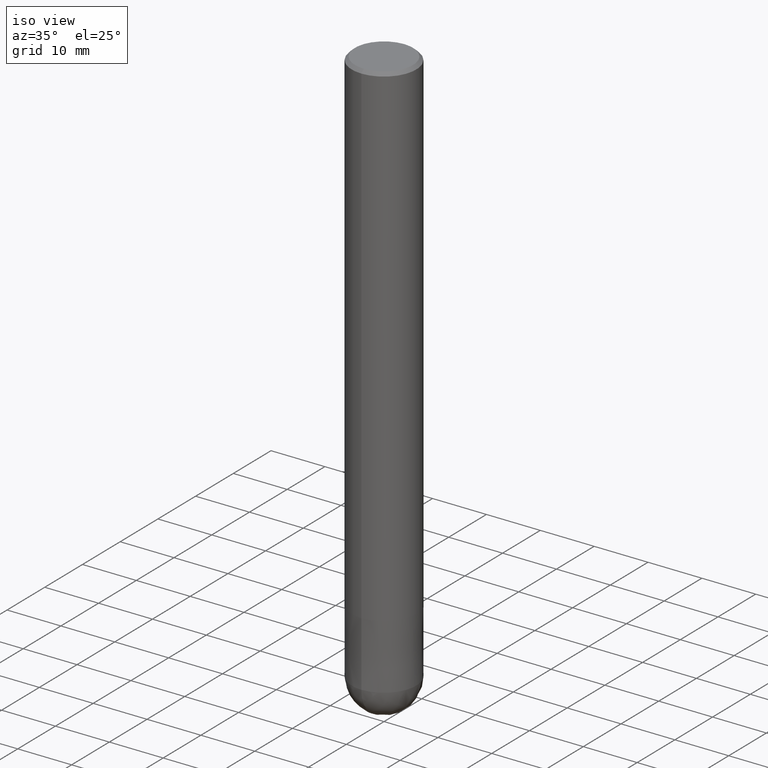
[diagram: clean part render]
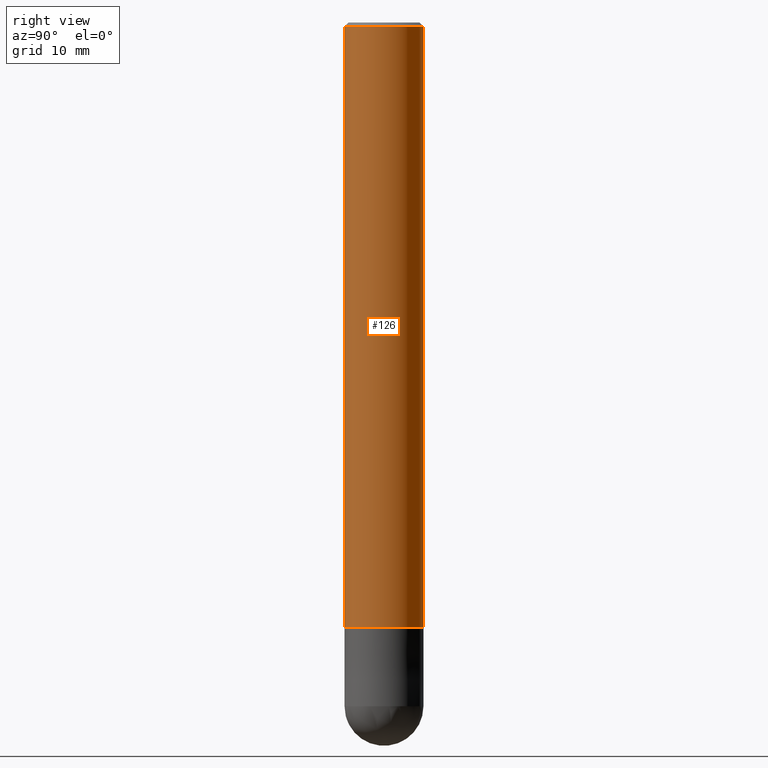
[diagram: tour spotlight — one face highlighted and labeled with its STEP entity id]
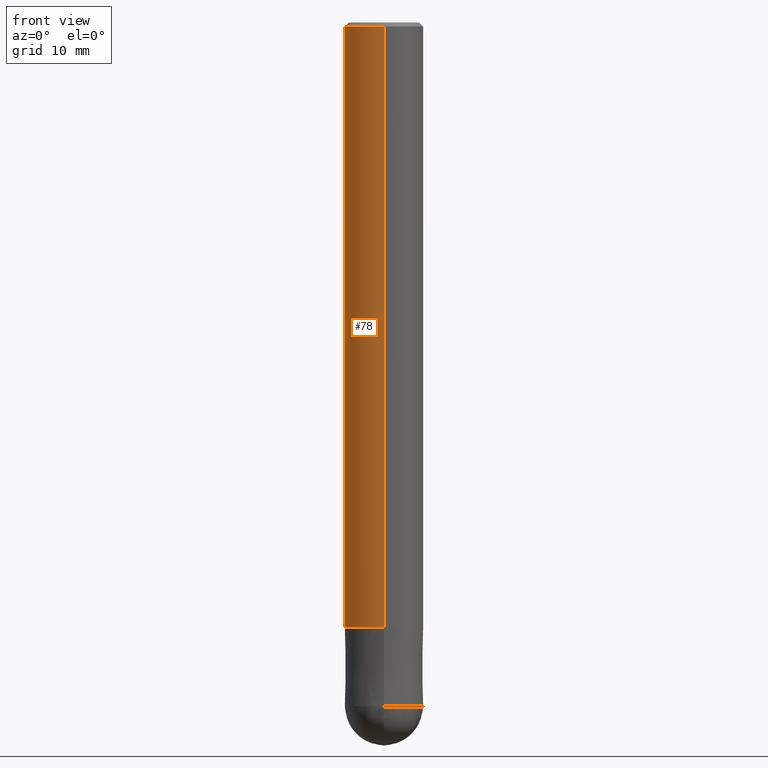
[diagram: tour spotlight — one face highlighted and labeled with its STEP entity id]
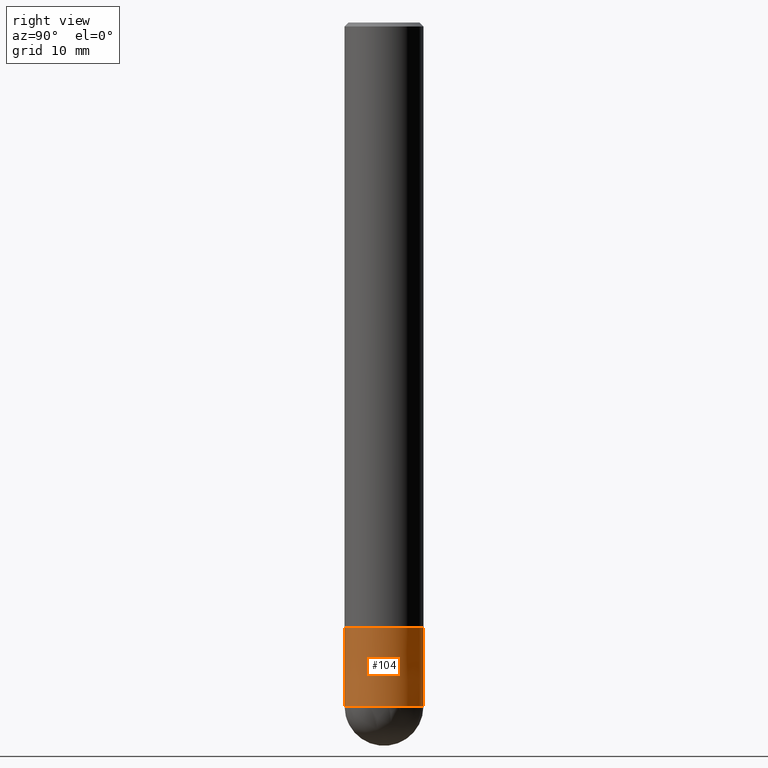
[diagram: tour spotlight — one face highlighted and labeled with its STEP entity id]
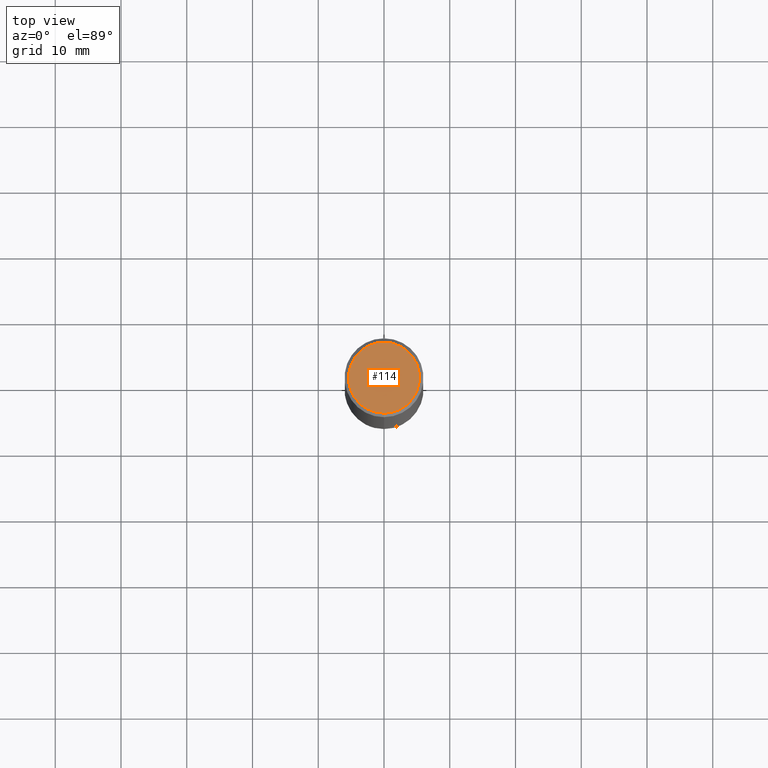
[diagram: tour spotlight — one face highlighted and labeled with its STEP entity id]
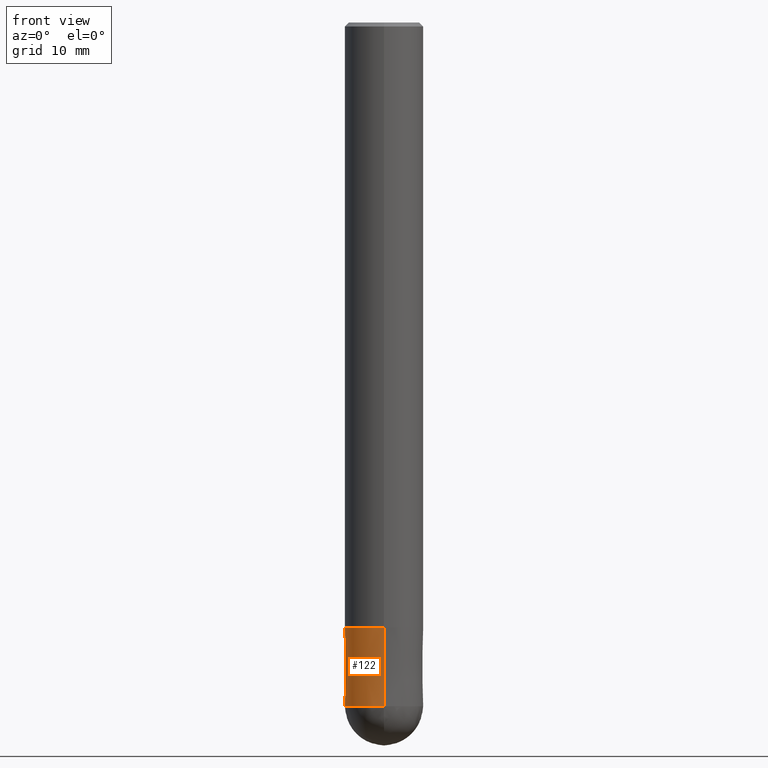
[diagram: tour spotlight — one face highlighted and labeled with its STEP entity id]
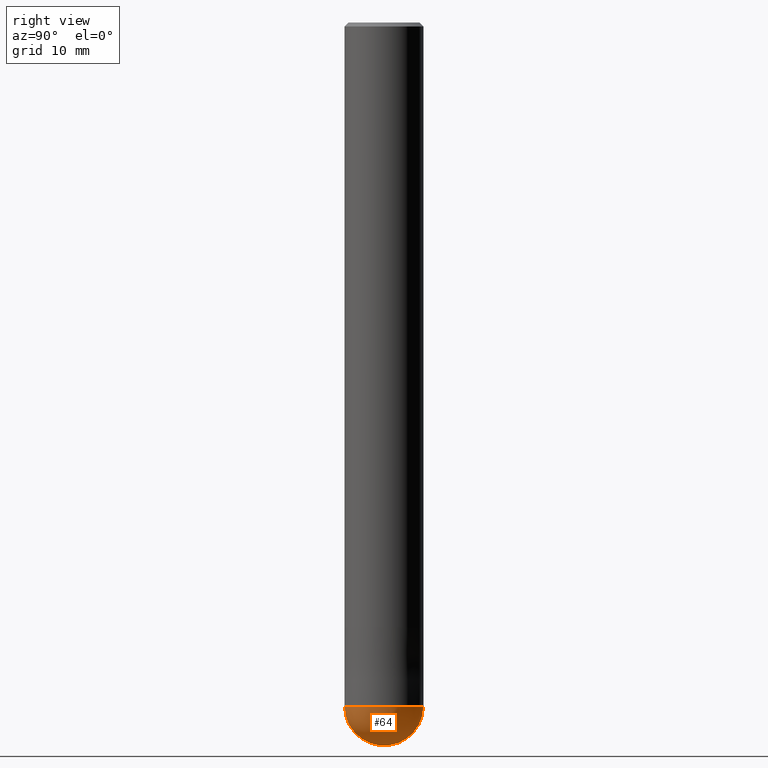
[diagram: tour spotlight — one face highlighted and labeled with its STEP entity id]
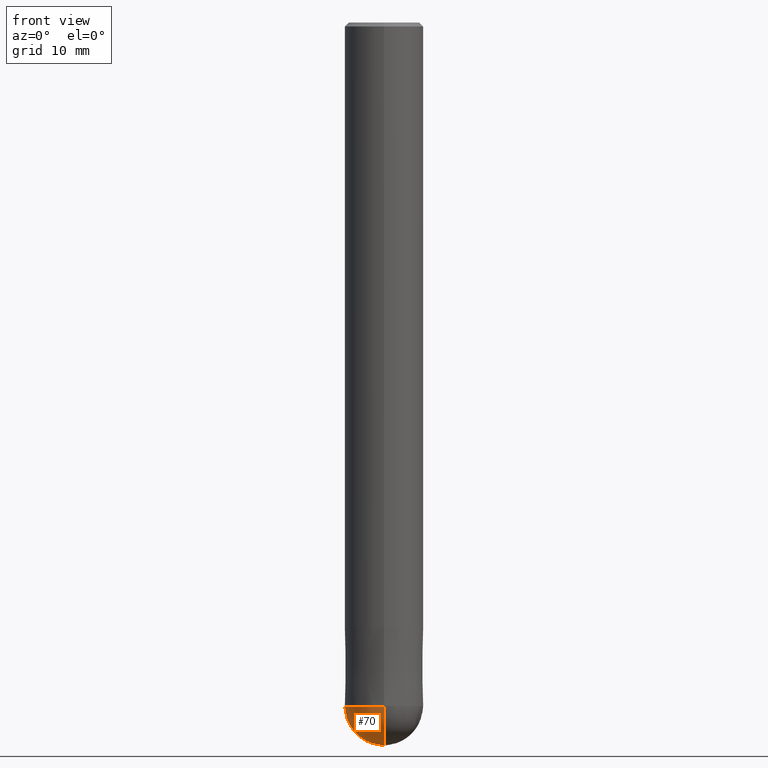
[diagram: tour spotlight — one face highlighted and labeled with its STEP entity id]
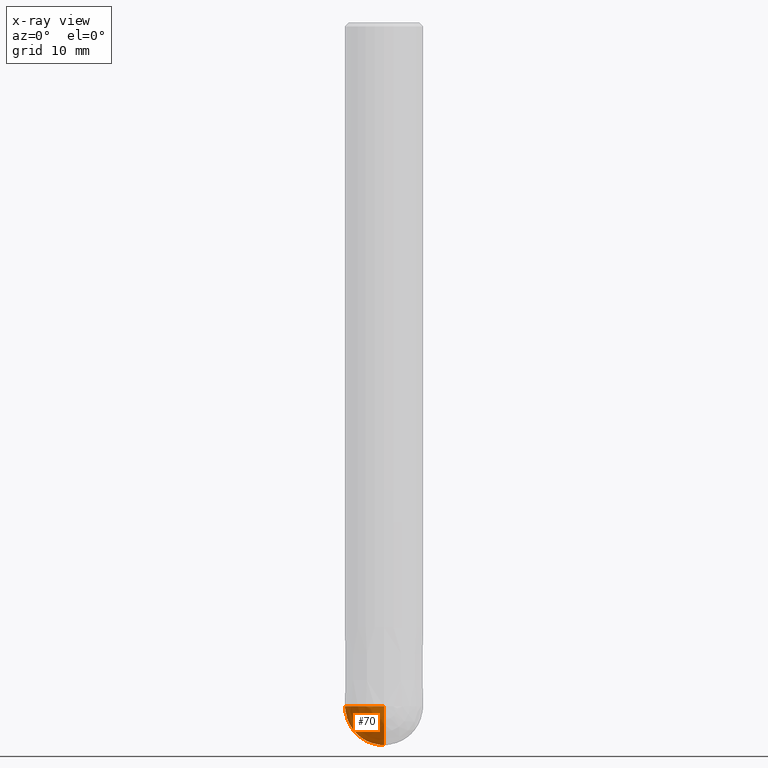
[diagram: x-ray of the same camera — body ghosted, this tour face saturated]
A machine part: a face-by-face anatomy tour. The part has 10 B-rep faces; the first image is the clean iso view, then the 7 largest visible faces are spotlighted one at a time (largest first), each with its STEP entity span.

Face 1 — right view, entity #126. In plain terms, the highlighted cylindrical surface (partial cylindrical patch) has radius 6 mm, axis along (-0, -0, 1).
Definition (entity closure, byte-faithful):
#68=EDGE_CURVE('',#72,#136,#161,.T.);
#72=VERTEX_POINT('',#166);
#74=VERTEX_POINT('',#168);
#76=VERTEX_POINT('',#170);
#88=EDGE_CURVE('',#76,#74,#184,.T.);
#98=EDGE_CURVE('',#72,#74,#194,.T.);
#100=EDGE_CURVE('',#136,#76,#196,.T.);
#126=ADVANCED_FACE('',(#227),#228,.T.);
#136=VERTEX_POINT('',#239);
#161=LINE('',#257,#258);
#166=CARTESIAN_POINT('',(0.0,6.0,-0.599999999999994));
#168=CARTESIAN_POINT('',(7.34763812293426E-016,-6.0,-0.599999999999994));
#170=CARTESIAN_POINT('',(7.34763812293426E-016,-6.0,-92.0));
#184=LINE('',#284,#285);
#194=CIRCLE('',#298,6.0);
#196=CIRCLE('',#301,6.0);
#227=FACE_OUTER_BOUND('',#338,.T.);
#228=CYLINDRICAL_SURFACE('',#339,6.0);
#239=CARTESIAN_POINT('',(0.0,6.0,-92.0));
#257=CARTESIAN_POINT('',(-7.34763812293426E-016,6.0,-46.3));
#258=VECTOR('',#363,1.0);
#284=CARTESIAN_POINT('',(7.34763812293426E-016,-6.0,-46.3));
#285=VECTOR('',#392,1.0);
#298=AXIS2_PLACEMENT_3D('',#403,#404,#405);
#301=AXIS2_PLACEMENT_3D('',#406,#407,#408);
#338=EDGE_LOOP('',(#453,#454,#455,#456));
#339=AXIS2_PLACEMENT_3D('',#457,#458,#459);
#363=DIRECTION('',(0.0,0.0,-1.0));
#392=DIRECTION('',(-0.0,-0.0,1.0));
#403=CARTESIAN_POINT('',(0.0,0.0,-0.599999999999994));
#404=DIRECTION('',(0.0,0.0,-1.0));
#405=DIRECTION('',(0.0,1.0,0.0));
#406=CARTESIAN_POINT('',(0.0,0.0,-92.0));
#407=DIRECTION('',(0.0,0.0,-1.0));
#408=DIRECTION('',(0.0,1.0,0.0));
#453=ORIENTED_EDGE('',*,*,#68,.F.);
#454=ORIENTED_EDGE('',*,*,#98,.T.);
#455=ORIENTED_EDGE('',*,*,#88,.F.);
#456=ORIENTED_EDGE('',*,*,#100,.F.);
#457=CARTESIAN_POINT('',(0.0,0.0,-46.3));
#458=DIRECTION('',(-0.0,-0.0,1.0));
#459=DIRECTION('',(0.0,1.0,0.0));

Face 2 — front view, entity #78. In plain terms, the highlighted cylindrical surface (partial cylindrical patch) has radius 6 mm, axis along (-0, -0, 1).
Definition (entity closure, byte-faithful):
#68=EDGE_CURVE('',#72,#136,#161,.T.);
#72=VERTEX_POINT('',#166);
#74=VERTEX_POINT('',#168);
#76=VERTEX_POINT('',#170);
#78=ADVANCED_FACE('',(#172),#173,.T.);
#88=EDGE_CURVE('',#76,#74,#184,.T.);
#92=EDGE_CURVE('',#76,#136,#188,.T.);
#94=EDGE_CURVE('',#74,#72,#190,.T.);
#136=VERTEX_POINT('',#239);
#161=LINE('',#257,#258);
#166=CARTESIAN_POINT('',(0.0,6.0,-0.599999999999994));
#168=CARTESIAN_POINT('',(7.34763812293426E-016,-6.0,-0.599999999999994));
#170=CARTESIAN_POINT('',(7.34763812293426E-016,-6.0,-92.0));
#172=FACE_OUTER_BOUND('',#269,.T.);
#173=CYLINDRICAL_SURFACE('',#270,6.0);
#184=LINE('',#284,#285);
#188=CIRCLE('',#291,6.0);
#190=CIRCLE('',#294,6.0);
#239=CARTESIAN_POINT('',(0.0,6.0,-92.0));
#257=CARTESIAN_POINT('',(-7.34763812293426E-016,6.0,-46.3));
#258=VECTOR('',#363,1.0);
#269=EDGE_LOOP('',(#371,#372,#373,#374));
#270=AXIS2_PLACEMENT_3D('',#375,#376,#377);
#284=CARTESIAN_POINT('',(7.34763812293426E-016,-6.0,-46.3));
#285=VECTOR('',#392,1.0);
#291=AXIS2_PLACEMENT_3D('',#396,#397,#398);
#294=AXIS2_PLACEMENT_3D('',#399,#400,#401);
#363=DIRECTION('',(0.0,0.0,-1.0));
#371=ORIENTED_EDGE('',*,*,#68,.T.);
#372=ORIENTED_EDGE('',*,*,#92,.F.);
#373=ORIENTED_EDGE('',*,*,#88,.T.);
#374=ORIENTED_EDGE('',*,*,#94,.T.);
#375=CARTESIAN_POINT('',(0.0,0.0,-46.3));
#376=DIRECTION('',(-0.0,-0.0,1.0));
#377=DIRECTION('',(0.0,1.0,0.0));
#392=DIRECTION('',(-0.0,-0.0,1.0));
#396=CARTESIAN_POINT('',(0.0,0.0,-92.0));
#397=DIRECTION('',(0.0,0.0,-1.0));
#398=DIRECTION('',(0.0,1.0,0.0));
#399=CARTESIAN_POINT('',(0.0,0.0,-0.599999999999994));
#400=DIRECTION('',(0.0,0.0,-1.0));
#401=DIRECTION('',(0.0,1.0,0.0));

Face 3 — right view, entity #104. In plain terms, the highlighted conical surface has half-angle 0 deg.
Definition (entity closure, byte-faithful):
#62=EDGE_CURVE('',#132,#116,#154,.T.);
#102=EDGE_CURVE('',#118,#132,#198,.T.);
#104=ADVANCED_FACE('',(#200),#201,.T.);
#106=EDGE_CURVE('',#112,#118,#203,.T.);
#108=EDGE_CURVE('',#112,#116,#205,.T.);
#112=VERTEX_POINT('',#209);
#116=VERTEX_POINT('',#214);
#118=VERTEX_POINT('',#216);
#132=VERTEX_POINT('',#235);
#154=LINE('',#248,#249);
#198=CIRCLE('',#304,6.0);
#200=FACE_OUTER_BOUND('',#306,.T.);
#201=CONICAL_SURFACE('',#307,5.99995,8.33333333319503E-006);
#203=LINE('',#310,#311);
#205=CIRCLE('',#314,5.9999);
#209=CARTESIAN_POINT('',(0.0,5.9999,-92.0));
#214=CARTESIAN_POINT('',(7.34751566229888E-016,-5.9999,-92.0));
#216=CARTESIAN_POINT('',(0.0,6.0,-104.0));
#235=CARTESIAN_POINT('',(7.34763812293426E-016,-6.0,-104.0));
#248=CARTESIAN_POINT('',(7.34757689261657E-016,-5.99995,-98.0));
#249=VECTOR('',#356,1.0);
#304=AXIS2_PLACEMENT_3D('',#409,#410,#411);
#306=EDGE_LOOP('',(#413,#414,#415,#416));
#307=AXIS2_PLACEMENT_3D('',#417,#418,#419);
#310=CARTESIAN_POINT('',(-7.34757689261657E-016,5.99995,-98.0));
#311=VECTOR('',#420,1.0);
#314=AXIS2_PLACEMENT_3D('',#421,#422,#423);
#356=DIRECTION('',(-1.02050529482323E-021,8.33333333309857E-006,0.999999999965278));
#409=CARTESIAN_POINT('',(0.0,0.0,-104.0));
#410=DIRECTION('',(0.0,0.0,-1.0));
#411=DIRECTION('',(0.0,1.0,0.0));
#413=ORIENTED_EDGE('',*,*,#106,.F.);
#414=ORIENTED_EDGE('',*,*,#108,.T.);
#415=ORIENTED_EDGE('',*,*,#62,.F.);
#416=ORIENTED_EDGE('',*,*,#102,.F.);
#417=CARTESIAN_POINT('',(0.0,0.0,-98.0));
#418=DIRECTION('',(0.0,-0.0,-1.0));
#419=DIRECTION('',(0.0,1.0,0.0));
#420=DIRECTION('',(-1.02050529482323E-021,8.33333333309857E-006,-0.999999999965278));
#421=CARTESIAN_POINT('',(0.0,0.0,-92.0));
#422=DIRECTION('',(0.0,0.0,-1.0));
#423=DIRECTION('',(0.0,1.0,0.0));

Face 4 — top view, entity #114. In plain terms, the highlighted planar face has unit normal (-0, 0, 1).
Definition (entity closure, byte-faithful):
#66=VERTEX_POINT('',#159);
#80=VERTEX_POINT('',#175);
#90=EDGE_CURVE('',#66,#80,#186,.T.);
#110=EDGE_CURVE('',#80,#66,#207,.T.);
#114=ADVANCED_FACE('',(#211),#212,.T.);
#159=CARTESIAN_POINT('',(0.0,5.4,0.0));
#175=CARTESIAN_POINT('',(6.61287431064084E-016,-5.4,0.0));
#186=CIRCLE('',#288,5.4);
#207=CIRCLE('',#317,5.4);
#211=FACE_OUTER_BOUND('',#321,.T.);
#212=PLANE('',#322);
#288=AXIS2_PLACEMENT_3D('',#393,#394,#395);
#317=AXIS2_PLACEMENT_3D('',#424,#425,#426);
#321=EDGE_LOOP('',(#428,#429));
#322=AXIS2_PLACEMENT_3D('',#430,#431,#432);
#393=CARTESIAN_POINT('',(0.0,0.0,0.0));
#394=DIRECTION('',(0.0,0.0,-1.0));
#395=DIRECTION('',(0.0,1.0,0.0));
#424=CARTESIAN_POINT('',(0.0,0.0,0.0));
#425=DIRECTION('',(0.0,0.0,-1.0));
#426=DIRECTION('',(0.0,1.0,0.0));
#428=ORIENTED_EDGE('',*,*,#90,.F.);
#429=ORIENTED_EDGE('',*,*,#110,.F.);
#430=CARTESIAN_POINT('',(0.0,2.7,0.0));
#431=DIRECTION('',(-0.0,0.0,1.0));
#432=DIRECTION('',(0.0,-1.0,0.0));

Face 5 — front view, entity #122. In plain terms, the highlighted conical surface has half-angle 0 deg.
Definition (entity closure, byte-faithful):
#62=EDGE_CURVE('',#132,#116,#154,.T.);
#86=EDGE_CURVE('',#132,#118,#182,.T.);
#106=EDGE_CURVE('',#112,#118,#203,.T.);
#112=VERTEX_POINT('',#209);
#116=VERTEX_POINT('',#214);
#118=VERTEX_POINT('',#216);
#122=ADVANCED_FACE('',(#222),#223,.T.);
#124=EDGE_CURVE('',#116,#112,#225,.T.);
#132=VERTEX_POINT('',#235);
#154=LINE('',#248,#249);
#182=CIRCLE('',#281,6.0);
#203=LINE('',#310,#311);
#209=CARTESIAN_POINT('',(0.0,5.9999,-92.0));
#214=CARTESIAN_POINT('',(7.34751566229888E-016,-5.9999,-92.0));
#216=CARTESIAN_POINT('',(0.0,6.0,-104.0));
#222=FACE_OUTER_BOUND('',#332,.T.);
#223=CONICAL_SURFACE('',#333,5.99995,8.33333333319503E-006);
#225=CIRCLE('',#336,5.9999);
#235=CARTESIAN_POINT('',(7.34763812293426E-016,-6.0,-104.0));
#248=CARTESIAN_POINT('',(7.34757689261657E-016,-5.99995,-98.0));
#249=VECTOR('',#356,1.0);
#281=AXIS2_PLACEMENT_3D('',#389,#390,#391);
#310=CARTESIAN_POINT('',(-7.34757689261657E-016,5.99995,-98.0));
#311=VECTOR('',#420,1.0);
#332=EDGE_LOOP('',(#442,#443,#444,#445));
#333=AXIS2_PLACEMENT_3D('',#446,#447,#448);
#336=AXIS2_PLACEMENT_3D('',#449,#450,#451);
#356=DIRECTION('',(-1.02050529482323E-021,8.33333333309857E-006,0.999999999965278));
#389=CARTESIAN_POINT('',(0.0,0.0,-104.0));
#390=DIRECTION('',(0.0,0.0,-1.0));
#391=DIRECTION('',(0.0,1.0,0.0));
#420=DIRECTION('',(-1.02050529482323E-021,8.33333333309857E-006,-0.999999999965278));
#442=ORIENTED_EDGE('',*,*,#106,.T.);
#443=ORIENTED_EDGE('',*,*,#86,.F.);
#444=ORIENTED_EDGE('',*,*,#62,.T.);
#445=ORIENTED_EDGE('',*,*,#124,.T.);
#446=CARTESIAN_POINT('',(0.0,0.0,-98.0));
#447=DIRECTION('',(0.0,-0.0,-1.0));
#448=DIRECTION('',(0.0,1.0,0.0));
#449=CARTESIAN_POINT('',(0.0,0.0,-92.0));
#450=DIRECTION('',(0.0,0.0,-1.0));
#451=DIRECTION('',(0.0,1.0,0.0));

Face 6 — right view, entity #64. In plain terms, the highlighted spherical surface has radius 6 mm.
Definition (entity closure, byte-faithful):
#64=ADVANCED_FACE('',(#156),#157,.T.);
#84=EDGE_CURVE('',#132,#118,#180,.T.);
#102=EDGE_CURVE('',#118,#132,#198,.T.);
#118=VERTEX_POINT('',#216);
#132=VERTEX_POINT('',#235);
#156=FACE_OUTER_BOUND('',#251,.T.);
#157=SPHERICAL_SURFACE('',#252,6.00000000000001);
#180=CIRCLE('',#278,6.00000000000001);
#198=CIRCLE('',#304,6.0);
#216=CARTESIAN_POINT('',(0.0,6.0,-104.0));
#235=CARTESIAN_POINT('',(7.34763812293426E-016,-6.0,-104.0));
#251=EDGE_LOOP('',(#358,#359));
#252=AXIS2_PLACEMENT_3D('',#360,#361,#362);
#278=AXIS2_PLACEMENT_3D('',#386,#387,#388);
#304=AXIS2_PLACEMENT_3D('',#409,#410,#411);
#358=ORIENTED_EDGE('',*,*,#84,.T.);
#359=ORIENTED_EDGE('',*,*,#102,.T.);
#360=CARTESIAN_POINT('',(0.0,0.0,-104.0));
#361=DIRECTION('',(0.0,1.0,0.0));
#362=DIRECTION('',(0.0,0.0,-1.0));
#386=CARTESIAN_POINT('',(0.0,0.0,-104.0));
#387=DIRECTION('',(1.0,0.0,1.22460635382238E-016));
#388=DIRECTION('',(-1.22460635382238E-016,0.0,1.0));
#409=CARTESIAN_POINT('',(0.0,0.0,-104.0));
#410=DIRECTION('',(0.0,0.0,-1.0));
#411=DIRECTION('',(0.0,1.0,0.0));

Face 7 — front view, entity #70. An x-ray twin of the same camera follows (body ghosted, this face saturated) — the face is partly hidden behind the body. In plain terms, the highlighted spherical surface has radius 6 mm.
Definition (entity closure, byte-faithful):
#70=ADVANCED_FACE('',(#163),#164,.T.);
#84=EDGE_CURVE('',#132,#118,#180,.T.);
#86=EDGE_CURVE('',#132,#118,#182,.T.);
#118=VERTEX_POINT('',#216);
#132=VERTEX_POINT('',#235);
#163=FACE_OUTER_BOUND('',#260,.T.);
#164=SPHERICAL_SURFACE('',#261,6.00000000000001);
#180=CIRCLE('',#278,6.00000000000001);
#182=CIRCLE('',#281,6.0);
#216=CARTESIAN_POINT('',(0.0,6.0,-104.0));
#235=CARTESIAN_POINT('',(7.34763812293426E-016,-6.0,-104.0));
#260=EDGE_LOOP('',(#365,#366));
#261=AXIS2_PLACEMENT_3D('',#367,#368,#369);
#278=AXIS2_PLACEMENT_3D('',#386,#387,#388);
#281=AXIS2_PLACEMENT_3D('',#389,#390,#391);
#365=ORIENTED_EDGE('',*,*,#84,.F.);
#366=ORIENTED_EDGE('',*,*,#86,.T.);
#367=CARTESIAN_POINT('',(0.0,0.0,-104.0));
#368=DIRECTION('',(0.0,1.0,0.0));
#369=DIRECTION('',(0.0,0.0,-1.0));
#386=CARTESIAN_POINT('',(0.0,0.0,-104.0));
#387=DIRECTION('',(1.0,0.0,1.22460635382238E-016));
#388=DIRECTION('',(-1.22460635382238E-016,0.0,1.0));
#389=CARTESIAN_POINT('',(0.0,0.0,-104.0));
#390=DIRECTION('',(0.0,0.0,-1.0));
#391=DIRECTION('',(0.0,1.0,0.0));